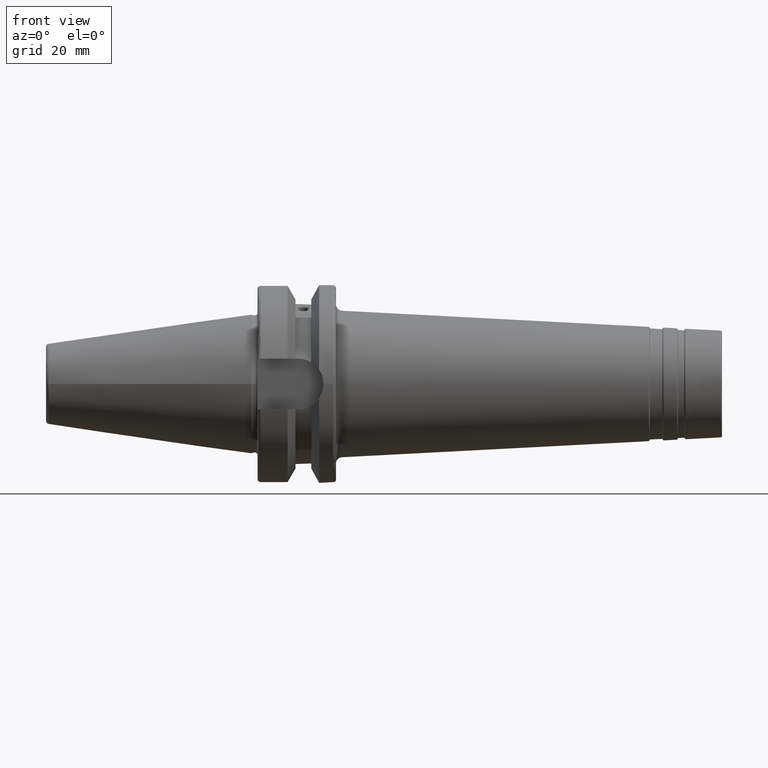
[diagram: clean part render]
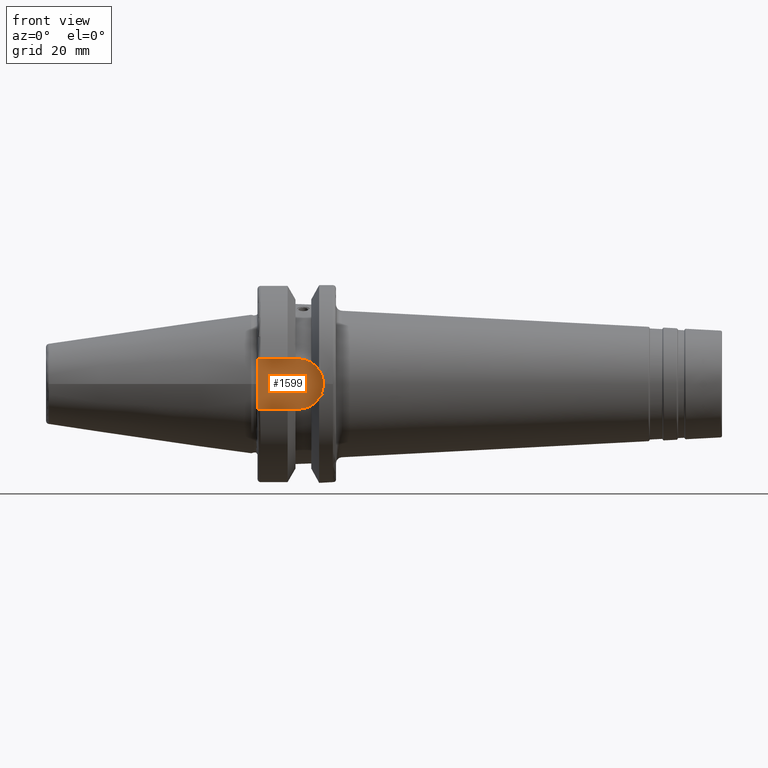
[diagram: same view with one face highlighted and labeled with its STEP entity id]
A machine part, front view. The second image highlights one B-rep face of the part: STEP entity #1599.
In plain terms, the highlighted planar face has unit normal (0, 1, 0).
Its self-contained STEP definition (entity closure, byte-faithful):
#47=PLANE('',#1811);
#185=FACE_OUTER_BOUND('',#279,.T.);
#279=EDGE_LOOP('',(#1327,#1328,#1329,#1330));
#357=LINE('',#2954,#424);
#359=LINE('',#2959,#426);
#363=LINE('',#2981,#430);
#424=VECTOR('',#2249,10.);
#426=VECTOR('',#2253,10.);
#430=VECTOR('',#2259,10.);
#542=CIRCLE('',#1808,8.05);
#704=VERTEX_POINT('',#2925);
#705=VERTEX_POINT('',#2927);
#711=VERTEX_POINT('',#2952);
#713=VERTEX_POINT('',#2958);
#922=EDGE_CURVE('',#704,#705,#542,.T.);
#930=EDGE_CURVE('',#711,#704,#357,.T.);
#932=EDGE_CURVE('',#705,#713,#359,.T.);
#938=EDGE_CURVE('',#713,#711,#363,.T.);
#1327=ORIENTED_EDGE('',*,*,#932,.F.);
#1328=ORIENTED_EDGE('',*,*,#922,.F.);
#1329=ORIENTED_EDGE('',*,*,#930,.F.);
#1330=ORIENTED_EDGE('',*,*,#938,.F.);
#1599=ADVANCED_FACE('',(#185),#47,.F.);
#1808=AXIS2_PLACEMENT_3D('',#2928,#2240,#2241);
#1811=AXIS2_PLACEMENT_3D('',#2980,#2257,#2258);
#2240=DIRECTION('center_axis',(0.,1.,0.));
#2241=DIRECTION('ref_axis',(0.,0.,1.));
#2249=DIRECTION('',(1.,0.,8.57315076930623E-17));
#2253=DIRECTION('',(-1.,0.,-8.57315076930623E-17));
#2257=DIRECTION('center_axis',(0.,1.,0.));
#2258=DIRECTION('ref_axis',(0.,0.,1.));
#2259=DIRECTION('',(0.,0.,1.));
#2925=CARTESIAN_POINT('',(14.95,-22.6,8.05));
#2927=CARTESIAN_POINT('',(14.95,-22.6,-8.05));
#2928=CARTESIAN_POINT('Origin',(14.95,-22.6,0.));
#2952=CARTESIAN_POINT('',(1.99999999999999,-22.6,8.05));
#2954=CARTESIAN_POINT('',(1.99999999999999,-22.6,8.05));
#2958=CARTESIAN_POINT('',(1.99999999999999,-22.6,-8.05));
#2959=CARTESIAN_POINT('',(14.95,-22.6,-8.05));
#2980=CARTESIAN_POINT('Origin',(12.5,-22.6,0.));
#2981=CARTESIAN_POINT('',(1.99999999999999,-22.6,0.));